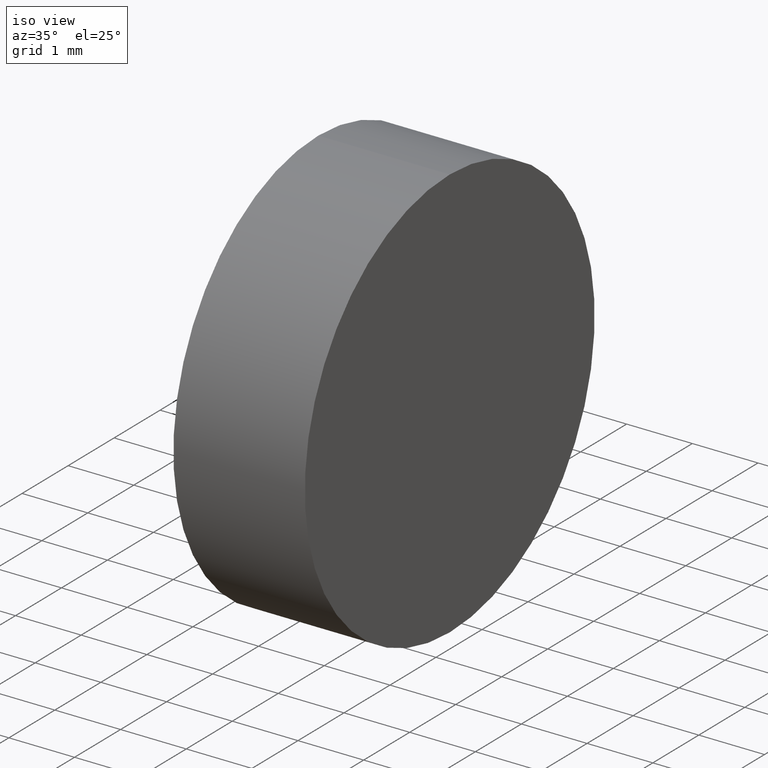
[diagram: clean part render]
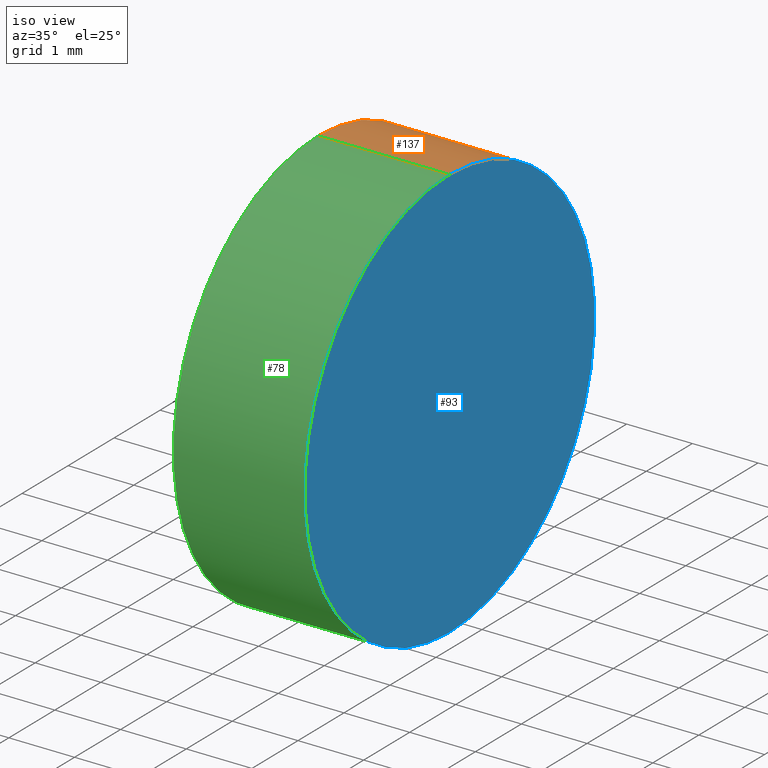
[diagram: same view with three faces highlighted in distinct colors, each labeled with its STEP entity id]
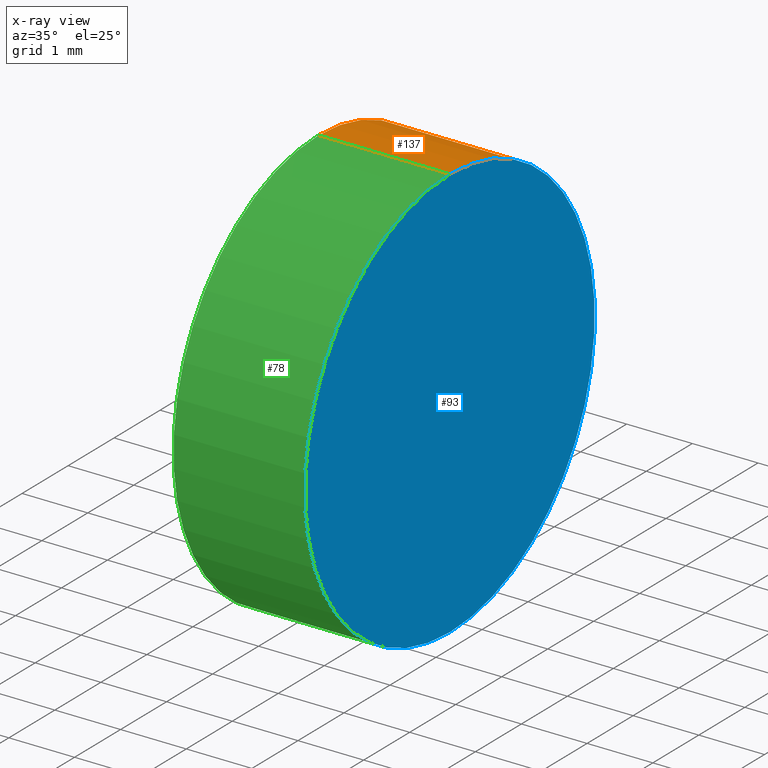
[diagram: x-ray of the same camera — body ghosted, the three highlighted faces saturated]
A machine part, iso view with three faces highlighted in distinct colors.
The next image is the same camera in x-ray (body ghosted, the three faces saturated) — at least one of them is partly hidden behind the body in this view.
Their STEP definitions:

[orange] entity #137 — the highlighted cylindrical surface (partial cylindrical patch) has radius 3.15 mm, axis along (-1, -0, -0).
#4 = EDGE_CURVE ( 'NONE', #30, #132, #14, .T. ) ;
#14 = LINE ( 'NONE', #115, #53 ) ;
#15 = EDGE_CURVE ( 'NONE', #47, #18, #96, .T. ) ;
#16 = CARTESIAN_POINT ( 'NONE',  ( 50.80016039852321100, 15.45863586980308400, 3.150000000000001700 ) ) ;
#18 = VERTEX_POINT ( 'NONE', #114 ) ;
#20 = AXIS2_PLACEMENT_3D ( 'NONE', #45, #89, #79 ) ;
#25 = DIRECTION ( 'NONE',  ( -1.000000000000000000, -0.0000000000000000000, -0.0000000000000000000 ) ) ;
#29 = CIRCLE ( 'NONE', #135, 3.150000000000001700 ) ;
#30 = VERTEX_POINT ( 'NONE', #102 ) ;
#31 = CYLINDRICAL_SURFACE ( 'NONE', #104, 3.150000000000001700 ) ;
#33 = EDGE_CURVE ( 'NONE', #47, #30, #29, .T. ) ;
#36 = CARTESIAN_POINT ( 'NONE',  ( 53.88796447852887200, 15.45863586980308400, 0.0000000000000000000 ) ) ;
#44 = DIRECTION ( 'NONE',  ( -1.000000000000000000, -0.0000000000000000000, -0.0000000000000000000 ) ) ;
#45 = CARTESIAN_POINT ( 'NONE',  ( 51.88796447852888600, 15.45863586980308400, 0.0000000000000000000 ) ) ;
#46 = DIRECTION ( 'NONE',  ( 0.0000000000000000000, 0.0000000000000000000, 1.000000000000000000 ) ) ;
#47 = VERTEX_POINT ( 'NONE', #66 ) ;
#50 = FACE_OUTER_BOUND ( 'NONE', #103, .T. ) ;
#53 = VECTOR ( 'NONE', #134, 1000.000000000000000 ) ;
#57 = CARTESIAN_POINT ( 'NONE',  ( 50.80016039852321100, 15.45863586980308400, 0.0000000000000000000 ) ) ;
#66 = CARTESIAN_POINT ( 'NONE',  ( 53.88796447852887200, 15.45863586980308400, 3.150000000000001700 ) ) ;
#69 = CARTESIAN_POINT ( 'NONE',  ( 51.88796447852888600, 15.45863586980308400, -3.150000000000001700 ) ) ;
#73 = ORIENTED_EDGE ( 'NONE', *, *, #94, .F. ) ;
#76 = ORIENTED_EDGE ( 'NONE', *, *, #33, .T. ) ;
#79 = DIRECTION ( 'NONE',  ( 0.0000000000000000000, 0.0000000000000000000, 1.000000000000000000 ) ) ;
#81 = CIRCLE ( 'NONE', #20, 3.150000000000001700 ) ;
#82 = ORIENTED_EDGE ( 'NONE', *, *, #15, .F. ) ;
#89 = DIRECTION ( 'NONE',  ( -1.000000000000000000, -0.0000000000000000000, -0.0000000000000000000 ) ) ;
#90 = VECTOR ( 'NONE', #25, 1000.000000000000000 ) ;
#94 = EDGE_CURVE ( 'NONE', #18, #132, #81, .T. ) ;
#95 = ORIENTED_EDGE ( 'NONE', *, *, #4, .T. ) ;
#96 = LINE ( 'NONE', #16, #90 ) ;
#102 = CARTESIAN_POINT ( 'NONE',  ( 53.88796447852887200, 15.45863586980308400, -3.150000000000001700 ) ) ;
#103 = EDGE_LOOP ( 'NONE', ( #76, #95, #73, #82 ) ) ;
#104 = AXIS2_PLACEMENT_3D ( 'NONE', #57, #44, #121 ) ;
#114 = CARTESIAN_POINT ( 'NONE',  ( 51.88796447852888600, 15.45863586980308400, 3.150000000000001700 ) ) ;
#115 = CARTESIAN_POINT ( 'NONE',  ( 50.80016039852321100, 15.45863586980308400, -3.150000000000001700 ) ) ;
#121 = DIRECTION ( 'NONE',  ( 0.0000000000000000000, 0.0000000000000000000, 1.000000000000000000 ) ) ;
#125 = DIRECTION ( 'NONE',  ( -1.000000000000000000, -0.0000000000000000000, -0.0000000000000000000 ) ) ;
#132 = VERTEX_POINT ( 'NONE', #69 ) ;
#134 = DIRECTION ( 'NONE',  ( -1.000000000000000000, -0.0000000000000000000, -0.0000000000000000000 ) ) ;
#135 = AXIS2_PLACEMENT_3D ( 'NONE', #36, #125, #46 ) ;
#137 = ADVANCED_FACE ( 'NONE', ( #50 ), #31, .T. ) ;

[blue] entity #93 — the highlighted planar face has unit normal (-1, 0, -0).
#8 = DIRECTION ( 'NONE',  ( 0.0000000000000000000, 0.0000000000000000000, 1.000000000000000000 ) ) ;
#21 = ORIENTED_EDGE ( 'NONE', *, *, #139, .F. ) ;
#22 = AXIS2_PLACEMENT_3D ( 'NONE', #100, #58, #136 ) ;
#24 = AXIS2_PLACEMENT_3D ( 'NONE', #59, #70, #8 ) ;
#26 = PLANE ( 'NONE',  #22 ) ;
#29 = CIRCLE ( 'NONE', #135, 3.150000000000001700 ) ;
#30 = VERTEX_POINT ( 'NONE', #102 ) ;
#32 = ORIENTED_EDGE ( 'NONE', *, *, #33, .F. ) ;
#33 = EDGE_CURVE ( 'NONE', #47, #30, #29, .T. ) ;
#36 = CARTESIAN_POINT ( 'NONE',  ( 53.88796447852887200, 15.45863586980308400, 0.0000000000000000000 ) ) ;
#46 = DIRECTION ( 'NONE',  ( 0.0000000000000000000, 0.0000000000000000000, 1.000000000000000000 ) ) ;
#47 = VERTEX_POINT ( 'NONE', #66 ) ;
#54 = FACE_OUTER_BOUND ( 'NONE', #113, .T. ) ;
#58 = DIRECTION ( 'NONE',  ( -1.000000000000000000, 0.0000000000000000000, -0.0000000000000000000 ) ) ;
#59 = CARTESIAN_POINT ( 'NONE',  ( 53.88796447852887200, 15.45863586980308400, 0.0000000000000000000 ) ) ;
#66 = CARTESIAN_POINT ( 'NONE',  ( 53.88796447852887200, 15.45863586980308400, 3.150000000000001700 ) ) ;
#70 = DIRECTION ( 'NONE',  ( -1.000000000000000000, -0.0000000000000000000, -0.0000000000000000000 ) ) ;
#93 = ADVANCED_FACE ( 'NONE', ( #54 ), #26, .F. ) ;
#100 = CARTESIAN_POINT ( 'NONE',  ( 53.88796447852887200, 18.60863586980308400, 0.0000000000000000000 ) ) ;
#102 = CARTESIAN_POINT ( 'NONE',  ( 53.88796447852887200, 15.45863586980308400, -3.150000000000001700 ) ) ;
#113 = EDGE_LOOP ( 'NONE', ( #32, #21 ) ) ;
#125 = DIRECTION ( 'NONE',  ( -1.000000000000000000, -0.0000000000000000000, -0.0000000000000000000 ) ) ;
#131 = CIRCLE ( 'NONE', #24, 3.150000000000001700 ) ;
#135 = AXIS2_PLACEMENT_3D ( 'NONE', #36, #125, #46 ) ;
#136 = DIRECTION ( 'NONE',  ( -0.0000000000000000000, 0.0000000000000000000, 1.000000000000000000 ) ) ;
#139 = EDGE_CURVE ( 'NONE', #30, #47, #131, .T. ) ;

[green] entity #78 — the highlighted cylindrical surface (partial cylindrical patch) has radius 3.15 mm, axis along (-1, -0, -0).
#4 = EDGE_CURVE ( 'NONE', #30, #132, #14, .T. ) ;
#8 = DIRECTION ( 'NONE',  ( 0.0000000000000000000, 0.0000000000000000000, 1.000000000000000000 ) ) ;
#12 = AXIS2_PLACEMENT_3D ( 'NONE', #27, #86, #91 ) ;
#14 = LINE ( 'NONE', #115, #53 ) ;
#15 = EDGE_CURVE ( 'NONE', #47, #18, #96, .T. ) ;
#16 = CARTESIAN_POINT ( 'NONE',  ( 50.80016039852321100, 15.45863586980308400, 3.150000000000001700 ) ) ;
#17 = CYLINDRICAL_SURFACE ( 'NONE', #12, 3.150000000000001700 ) ;
#18 = VERTEX_POINT ( 'NONE', #114 ) ;
#24 = AXIS2_PLACEMENT_3D ( 'NONE', #59, #70, #8 ) ;
#25 = DIRECTION ( 'NONE',  ( -1.000000000000000000, -0.0000000000000000000, -0.0000000000000000000 ) ) ;
#27 = CARTESIAN_POINT ( 'NONE',  ( 50.80016039852321100, 15.45863586980308400, 0.0000000000000000000 ) ) ;
#30 = VERTEX_POINT ( 'NONE', #102 ) ;
#34 = ORIENTED_EDGE ( 'NONE', *, *, #15, .T. ) ;
#35 = CARTESIAN_POINT ( 'NONE',  ( 51.88796447852888600, 15.45863586980308400, 0.0000000000000000000 ) ) ;
#38 = EDGE_CURVE ( 'NONE', #132, #18, #40, .T. ) ;
#40 = CIRCLE ( 'NONE', #88, 3.150000000000001700 ) ;
#43 = ORIENTED_EDGE ( 'NONE', *, *, #38, .F. ) ;
#47 = VERTEX_POINT ( 'NONE', #66 ) ;
#53 = VECTOR ( 'NONE', #134, 1000.000000000000000 ) ;
#59 = CARTESIAN_POINT ( 'NONE',  ( 53.88796447852887200, 15.45863586980308400, 0.0000000000000000000 ) ) ;
#66 = CARTESIAN_POINT ( 'NONE',  ( 53.88796447852887200, 15.45863586980308400, 3.150000000000001700 ) ) ;
#69 = CARTESIAN_POINT ( 'NONE',  ( 51.88796447852888600, 15.45863586980308400, -3.150000000000001700 ) ) ;
#70 = DIRECTION ( 'NONE',  ( -1.000000000000000000, -0.0000000000000000000, -0.0000000000000000000 ) ) ;
#78 = ADVANCED_FACE ( 'NONE', ( #112 ), #17, .T. ) ;
#80 = EDGE_LOOP ( 'NONE', ( #84, #98, #34, #43 ) ) ;
#84 = ORIENTED_EDGE ( 'NONE', *, *, #4, .F. ) ;
#86 = DIRECTION ( 'NONE',  ( -1.000000000000000000, -0.0000000000000000000, -0.0000000000000000000 ) ) ;
#88 = AXIS2_PLACEMENT_3D ( 'NONE', #35, #124, #122 ) ;
#90 = VECTOR ( 'NONE', #25, 1000.000000000000000 ) ;
#91 = DIRECTION ( 'NONE',  ( 0.0000000000000000000, 0.0000000000000000000, 1.000000000000000000 ) ) ;
#96 = LINE ( 'NONE', #16, #90 ) ;
#98 = ORIENTED_EDGE ( 'NONE', *, *, #139, .T. ) ;
#102 = CARTESIAN_POINT ( 'NONE',  ( 53.88796447852887200, 15.45863586980308400, -3.150000000000001700 ) ) ;
#112 = FACE_OUTER_BOUND ( 'NONE', #80, .T. ) ;
#114 = CARTESIAN_POINT ( 'NONE',  ( 51.88796447852888600, 15.45863586980308400, 3.150000000000001700 ) ) ;
#115 = CARTESIAN_POINT ( 'NONE',  ( 50.80016039852321100, 15.45863586980308400, -3.150000000000001700 ) ) ;
#122 = DIRECTION ( 'NONE',  ( 0.0000000000000000000, 0.0000000000000000000, 1.000000000000000000 ) ) ;
#124 = DIRECTION ( 'NONE',  ( -1.000000000000000000, -0.0000000000000000000, -0.0000000000000000000 ) ) ;
#131 = CIRCLE ( 'NONE', #24, 3.150000000000001700 ) ;
#132 = VERTEX_POINT ( 'NONE', #69 ) ;
#134 = DIRECTION ( 'NONE',  ( -1.000000000000000000, -0.0000000000000000000, -0.0000000000000000000 ) ) ;
#139 = EDGE_CURVE ( 'NONE', #30, #47, #131, .T. ) ;